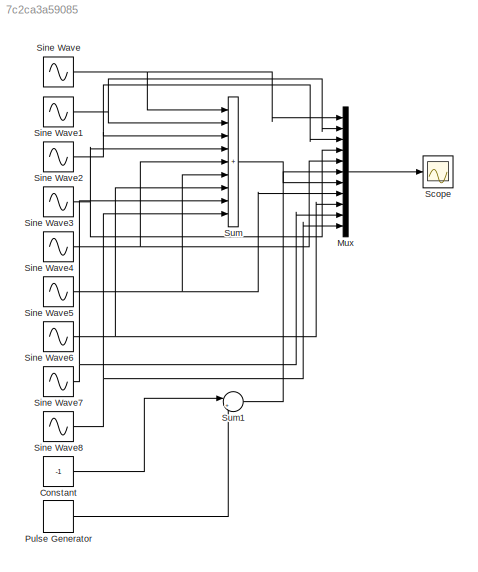
MODEL slx_7c2ca3a59085
KIND model
CONFIG AbsTol = auto
CONFIG EnableMultiTasking = off
CONFIG FixedStep = auto
CONFIG MaxStep = auto
CONFIG MinStep = auto
CONFIG RelTol = 1e-3
CONFIG SampleTimeConstraint = Unconstrained
CONFIG Solver = VariableStepAuto
CONFIG SolverName = VariableStepAuto
CONFIG StartTime = 0.0
CONFIG StopTime = 1
BLOCK [Constant] Constant
  Value = -1
BLOCK [Mux] Mux
  DisplayOption = bar
  Inputs = 11
  Ports = [11, 1]
BLOCK [DiscretePulseGenerator] Pulse Generator
  Amplitude = 2
  Period = 10
  PhaseDelay = 0.001
  Ports = [0, 1]
  PulseType = Time based
  PulseWidth = 5
  VectorParams1D = off
BLOCK [Scope] Scope
  Floating = off
  NumInputPorts = 1
  Ports = [1]
  ScopeSpecificationString = Simulink.scopes.TimeScopeBlockCfg('CurrentConfiguration', extmgr.ConfigurationSet(extmgr.Configuration('Core','General UI',true),extmgr.Configuration('Core','Source UI',true),extmgr.Configuration('Sources','WiredSimulink',true),extmgr.Configuration('Visuals','Time Domain',true,'SerializedDisplays',{struct('MinYLimReal','-1.59152','MaxYLimReal','1.59152','YLabelReal','','MinYLimMag','0.00000','MaxY...<+1491ch>
BLOCK [Sin] Sine Wave
  Amplitude = 4/pi
  Frequency = 2*pi
  Ports = [0, 1]
  SampleTime = 0
BLOCK [Sin] Sine Wave1
  Amplitude = 4/(3*pi)
  Frequency = 6*pi
  Ports = [0, 1]
  SampleTime = 0
BLOCK [Sin] Sine Wave2
  Amplitude = 4/(5*pi)
  Frequency = 10*pi
  Ports = [0, 1]
  SampleTime = 0
BLOCK [Sin] Sine Wave3
  Amplitude = 4/(7*pi)
  Frequency = 14*pi
  Ports = [0, 1]
  SampleTime = 0
BLOCK [Sin] Sine Wave4
  Amplitude = 4/(9*pi)
  Frequency = 18*pi
  Ports = [0, 1]
  SampleTime = 0
BLOCK [Sin] Sine Wave5
  Amplitude = 4/(11*pi)
  Frequency = 22*pi
  Ports = [0, 1]
  SampleTime = 0
BLOCK [Sin] Sine Wave6
  Amplitude = 4/(13*pi)
  Frequency = 26*pi
  Ports = [0, 1]
  SampleTime = 0
BLOCK [Sin] Sine Wave7
  Amplitude = 4/(15*pi)
  Frequency = 30*pi
  Ports = [0, 1]
  SampleTime = 0
BLOCK [Sin] Sine Wave8
  Amplitude = 4/(17*pi)
  Frequency = 33*pi
  Ports = [0, 1]
  SampleTime = 0
BLOCK [Sum] Sum
  IconShape = rectangular
  Inputs = 9
  Ports = [9, 1]
BLOCK [Sum] Sum1
  Inputs = |++
  Ports = [2, 1]
LINE Constant:1 -> Sum1:1
LINE Mux:1 -> Scope:1
LINE Pulse Generator:1 -> Sum1:2
NET Sine Wave1:1 -> Mux:2, Sum:2
NET Sine Wave2:1 -> Mux:3, Sum:3
NET Sine Wave3:1 -> Mux:4, Sum:4
NET Sine Wave4:1 -> Mux:5, Sum:5
NET Sine Wave5:1 -> Mux:8, Sum:6
NET Sine Wave6:1 -> Mux:9, Sum:7
NET Sine Wave7:1 -> Mux:10, Sum:8
NET Sine Wave8:1 -> Mux:11, Sum:9
NET Sine Wave:1 -> Mux:1, Sum:1
LINE Sum1:1 -> Mux:6
LINE Sum:1 -> Mux:7
note: NET lines group one-source signal fan-out (src -> all destinations, sorted); 1:1 wires keep LINE
